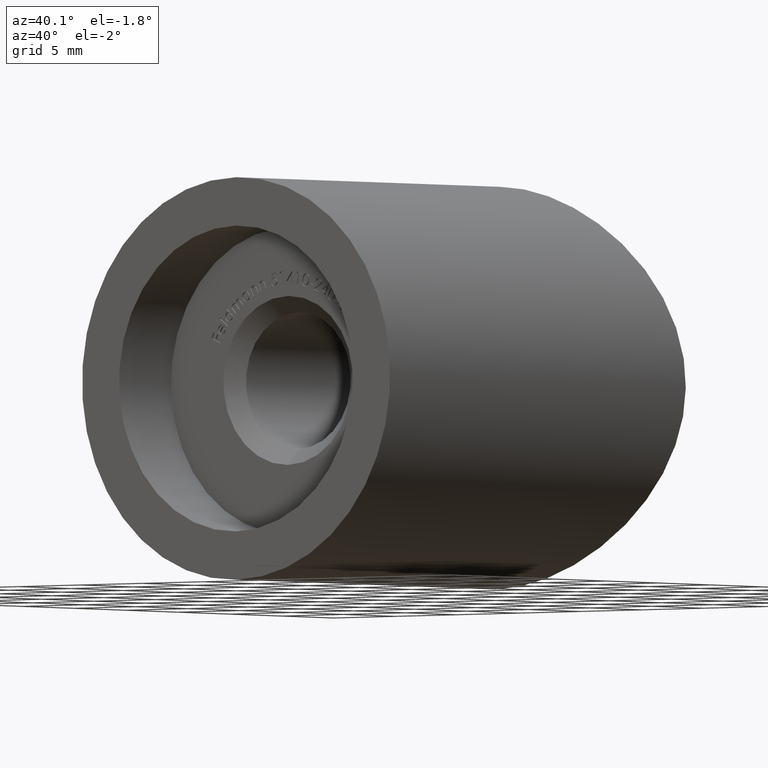
[diagram: clean part render]
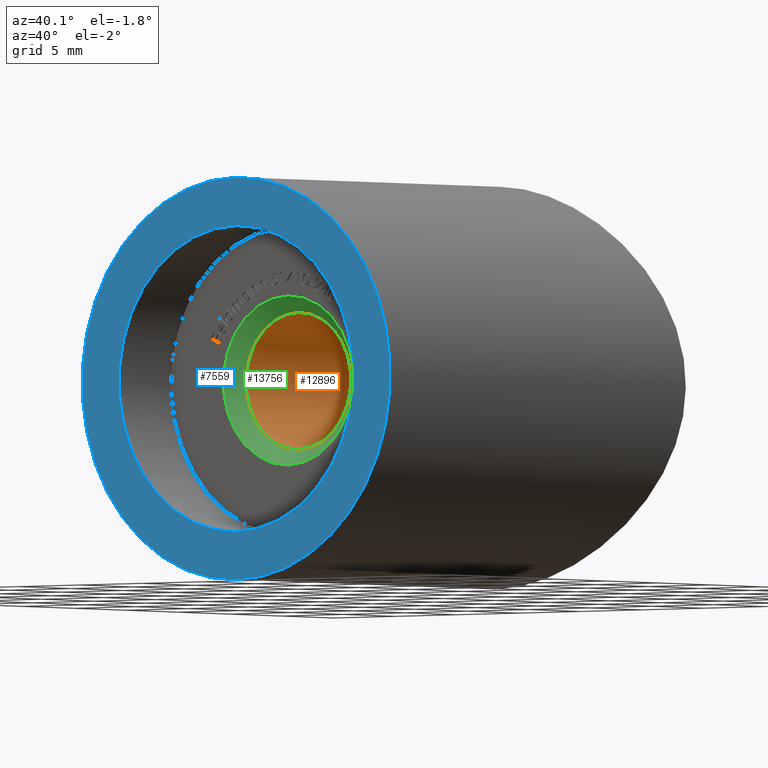
[diagram: same view with three faces highlighted in distinct colors, each labeled with its STEP entity id]
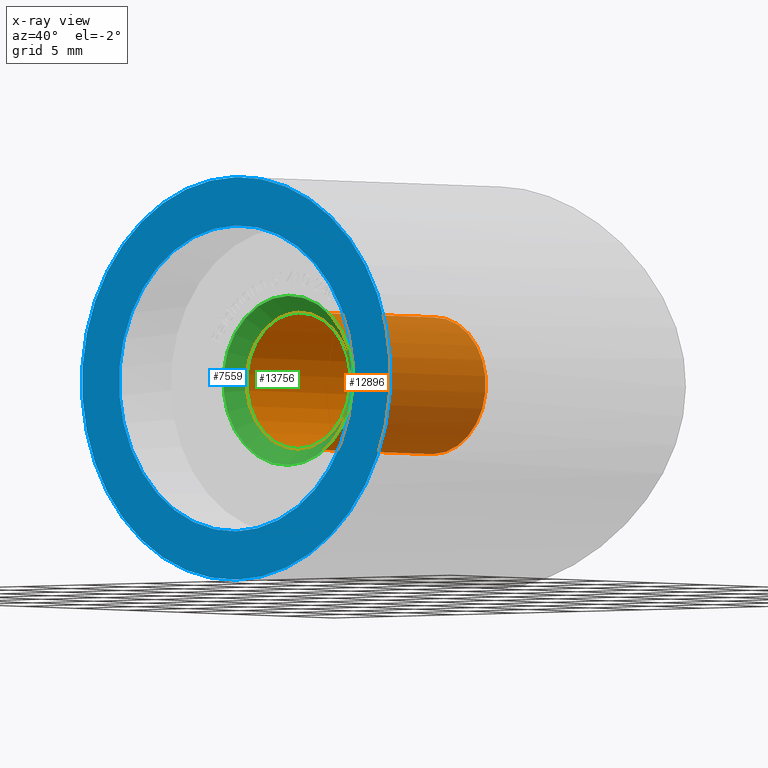
[diagram: x-ray of the same camera — body ghosted, the three highlighted faces saturated]
A machine part, auxiliary view with three faces highlighted in distinct colors.
The next image is the same camera in x-ray (body ghosted, the three faces saturated) — at least one of them is partly hidden behind the body in this view.
Their STEP definitions:

[orange] entity #12896 — the highlighted cylindrical surface (bore or boss wall) has radius 4.25 mm, axis along (-0, 1, -0).
#1184 = EDGE_CURVE ( 'NONE', #1982, #1982, #9819, .T. ) ;
#1295 = DIRECTION ( 'NONE',  ( 0.000000000000000000, 0.000000000000000000, -1.000000000000000000 ) ) ;
#1597 = CARTESIAN_POINT ( 'NONE',  ( 0.000000000000000000, 18.99999999999998934, -4.249999999999988454 ) ) ;
#1783 = ORIENTED_EDGE ( 'NONE', *, *, #1184, .T. ) ;
#1982 = VERTEX_POINT ( 'NONE', #2683 ) ;
#2683 = CARTESIAN_POINT ( 'NONE',  ( 0.000000000000000000, 6.000000000000012434, -4.249999999999988454 ) ) ;
#3218 = DIRECTION ( 'NONE',  ( 0.000000000000000000, 0.000000000000000000, -1.000000000000000000 ) ) ;
#3606 = CARTESIAN_POINT ( 'NONE',  ( 0.000000000000000000, 6.000000000000012434, 0.000000000000000000 ) ) ;
#3816 = FACE_OUTER_BOUND ( 'NONE', #11270, .T. ) ;
#4203 = VERTEX_POINT ( 'NONE', #1597 ) ;
#4507 = DIRECTION ( 'NONE',  ( 0.000000000000000000, 1.000000000000000000, 0.000000000000000000 ) ) ;
#4699 = DIRECTION ( 'NONE',  ( 0.000000000000000000, -1.000000000000000000, 0.000000000000000000 ) ) ;
#5201 = CARTESIAN_POINT ( 'NONE',  ( 0.000000000000000000, 20.00000000000000000, 0.000000000000000000 ) ) ;
#5934 = CIRCLE ( 'NONE', #11333, 4.249999999999988454 ) ;
#8667 = CYLINDRICAL_SURFACE ( 'NONE', #15222, 4.249999999999988454 ) ;
#8680 = FACE_OUTER_BOUND ( 'NONE', #14611, .T. ) ;
#9819 = CIRCLE ( 'NONE', #14175, 4.249999999999988454 ) ;
#10353 = EDGE_CURVE ( 'NONE', #4203, #4203, #5934, .T. ) ;
#10597 = ORIENTED_EDGE ( 'NONE', *, *, #10353, .T. ) ;
#11270 = EDGE_LOOP ( 'NONE', ( #10597 ) ) ;
#11333 = AXIS2_PLACEMENT_3D ( 'NONE', #13848, #4507, #3218 ) ;
#12896 = ADVANCED_FACE ( 'NONE', ( #3816, #8680 ), #8667, .F. ) ;
#13586 = DIRECTION ( 'NONE',  ( 0.000000000000000000, 0.000000000000000000, 1.000000000000000000 ) ) ;
#13848 = CARTESIAN_POINT ( 'NONE',  ( 0.000000000000000000, 18.99999999999998934, 0.000000000000000000 ) ) ;
#14175 = AXIS2_PLACEMENT_3D ( 'NONE', #3606, #4699, #1295 ) ;
#14611 = EDGE_LOOP ( 'NONE', ( #1783 ) ) ;
#14706 = DIRECTION ( 'NONE',  ( -0.000000000000000000, 1.000000000000000000, -0.000000000000000000 ) ) ;
#15222 = AXIS2_PLACEMENT_3D ( 'NONE', #5201, #14706, #13586 ) ;

[blue] entity #7559 — the highlighted planar face has unit normal (0, 1, 0).
#698 = VERTEX_POINT ( 'NONE', #9705 ) ;
#1068 = VERTEX_POINT ( 'NONE', #8717 ) ;
#1341 = CARTESIAN_POINT ( 'NONE',  ( 0.000000000000000000, 0.000000000000000000, 0.000000000000000000 ) ) ;
#1690 = DIRECTION ( 'NONE',  ( 0.000000000000000000, 1.000000000000000000, 0.000000000000000000 ) ) ;
#1840 = AXIS2_PLACEMENT_3D ( 'NONE', #2032, #15081, #13800 ) ;
#2032 = CARTESIAN_POINT ( 'NONE',  ( 0.000000000000000000, 0.000000000000000000, 0.000000000000000000 ) ) ;
#2617 = FACE_OUTER_BOUND ( 'NONE', #9585, .T. ) ;
#3026 = ORIENTED_EDGE ( 'NONE', *, *, #7973, .F. ) ;
#3653 = EDGE_LOOP ( 'NONE', ( #12732 ) ) ;
#3758 = DIRECTION ( 'NONE',  ( 0.000000000000000000, 0.000000000000000000, 1.000000000000000000 ) ) ;
#5269 = PLANE ( 'NONE',  #9019 ) ;
#5601 = FACE_BOUND ( 'NONE', #3653, .T. ) ;
#6181 = DIRECTION ( 'NONE',  ( 0.000000000000000000, 1.000000000000000000, 0.000000000000000000 ) ) ;
#6348 = CIRCLE ( 'NONE', #1840, 12.50000000000000000 ) ;
#7559 = ADVANCED_FACE ( 'NONE', ( #2617, #5601 ), #5269, .F. ) ;
#7973 = EDGE_CURVE ( 'NONE', #1068, #1068, #6348, .T. ) ;
#8717 = CARTESIAN_POINT ( 'NONE',  ( 0.000000000000000000, 0.000000000000000000, 12.50000000000000000 ) ) ;
#9019 = AXIS2_PLACEMENT_3D ( 'NONE', #14782, #1690, #14679 ) ;
#9585 = EDGE_LOOP ( 'NONE', ( #3026 ) ) ;
#9705 = CARTESIAN_POINT ( 'NONE',  ( 0.000000000000000000, 0.000000000000000000, 9.500000000000000000 ) ) ;
#11740 = AXIS2_PLACEMENT_3D ( 'NONE', #1341, #6181, #3758 ) ;
#12732 = ORIENTED_EDGE ( 'NONE', *, *, #13212, .T. ) ;
#13212 = EDGE_CURVE ( 'NONE', #698, #698, #13895, .T. ) ;
#13800 = DIRECTION ( 'NONE',  ( 0.000000000000000000, 0.000000000000000000, 1.000000000000000000 ) ) ;
#13895 = CIRCLE ( 'NONE', #11740, 9.500000000000000000 ) ;
#14679 = DIRECTION ( 'NONE',  ( 0.000000000000000000, -0.000000000000000000, 1.000000000000000000 ) ) ;
#14782 = CARTESIAN_POINT ( 'NONE',  ( 0.000000000000000000, 0.000000000000000000, 0.000000000000000000 ) ) ;
#15081 = DIRECTION ( 'NONE',  ( 0.000000000000000000, 1.000000000000000000, 0.000000000000000000 ) ) ;

[green] entity #13756 — the highlighted conical surface has half-angle 45 deg.
#189 = AXIS2_PLACEMENT_3D ( 'NONE', #14527, #5270, #11116 ) ;
#310 = EDGE_LOOP ( 'NONE', ( #14783 ) ) ;
#1184 = EDGE_CURVE ( 'NONE', #1982, #1982, #9819, .T. ) ;
#1295 = DIRECTION ( 'NONE',  ( 0.000000000000000000, 0.000000000000000000, -1.000000000000000000 ) ) ;
#1982 = VERTEX_POINT ( 'NONE', #2683 ) ;
#2204 = EDGE_LOOP ( 'NONE', ( #9758 ) ) ;
#2683 = CARTESIAN_POINT ( 'NONE',  ( 0.000000000000000000, 6.000000000000012434, -4.249999999999988454 ) ) ;
#2735 = CARTESIAN_POINT ( 'NONE',  ( 0.000000000000000000, 5.000000000000000888, -5.250000000000004441 ) ) ;
#3064 = EDGE_CURVE ( 'NONE', #3270, #3270, #12353, .T. ) ;
#3270 = VERTEX_POINT ( 'NONE', #2735 ) ;
#3606 = CARTESIAN_POINT ( 'NONE',  ( 0.000000000000000000, 6.000000000000012434, 0.000000000000000000 ) ) ;
#4699 = DIRECTION ( 'NONE',  ( 0.000000000000000000, -1.000000000000000000, 0.000000000000000000 ) ) ;
#5270 = DIRECTION ( 'NONE',  ( 0.000000000000000000, -1.000000000000000000, 0.000000000000000000 ) ) ;
#5696 = CONICAL_SURFACE ( 'NONE', #189, 4.249999999999988454, 0.7853981633974509435 ) ;
#6997 = FACE_OUTER_BOUND ( 'NONE', #2204, .T. ) ;
#8822 = DIRECTION ( 'NONE',  ( 0.000000000000000000, 0.000000000000000000, -1.000000000000000000 ) ) ;
#9758 = ORIENTED_EDGE ( 'NONE', *, *, #3064, .F. ) ;
#9819 = CIRCLE ( 'NONE', #14175, 4.249999999999988454 ) ;
#10031 = DIRECTION ( 'NONE',  ( -0.000000000000000000, 1.000000000000000000, -0.000000000000000000 ) ) ;
#11116 = DIRECTION ( 'NONE',  ( 0.000000000000000000, 0.000000000000000000, -1.000000000000000000 ) ) ;
#12353 = CIRCLE ( 'NONE', #13196, 5.250000000000004441 ) ;
#13196 = AXIS2_PLACEMENT_3D ( 'NONE', #14744, #10031, #8822 ) ;
#13756 = ADVANCED_FACE ( 'NONE', ( #6997, #14074 ), #5696, .F. ) ;
#14074 = FACE_BOUND ( 'NONE', #310, .T. ) ;
#14175 = AXIS2_PLACEMENT_3D ( 'NONE', #3606, #4699, #1295 ) ;
#14527 = CARTESIAN_POINT ( 'NONE',  ( 0.000000000000000000, 6.000000000000012434, 0.000000000000000000 ) ) ;
#14744 = CARTESIAN_POINT ( 'NONE',  ( 0.000000000000000000, 5.000000000000000888, 0.000000000000000000 ) ) ;
#14783 = ORIENTED_EDGE ( 'NONE', *, *, #1184, .F. ) ;